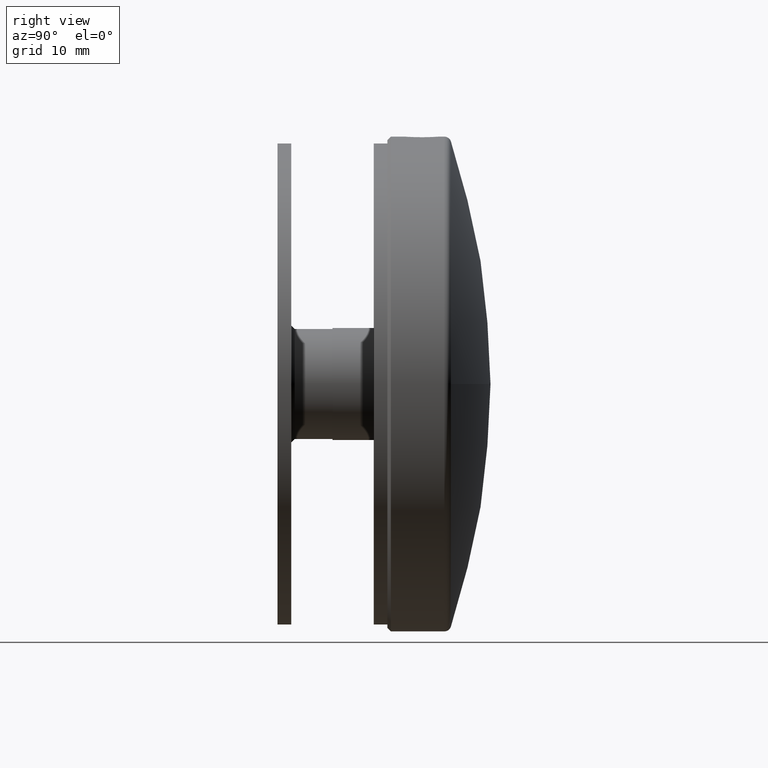
[diagram: clean part render]
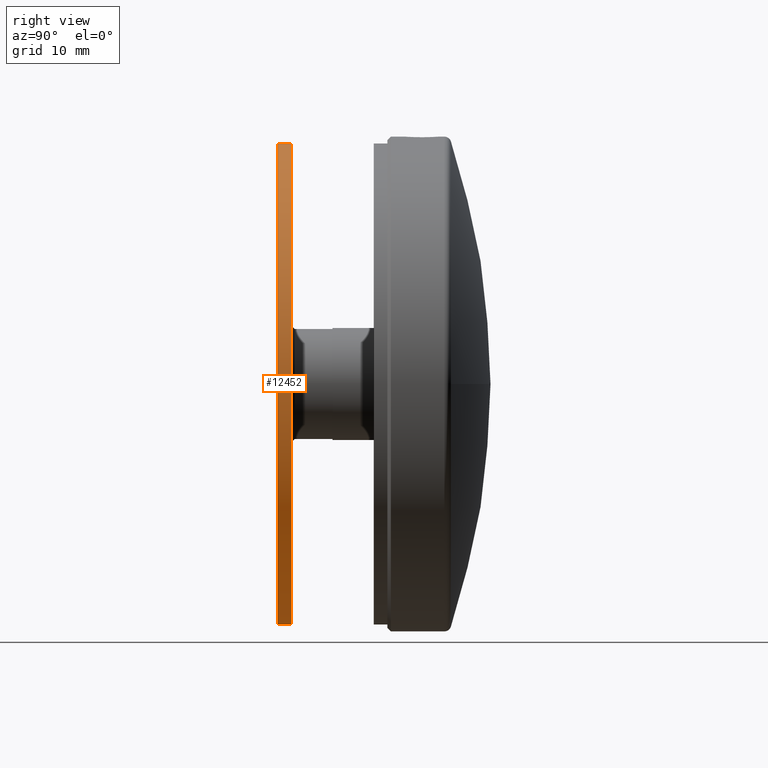
[diagram: same view with one face highlighted and labeled with its STEP entity id]
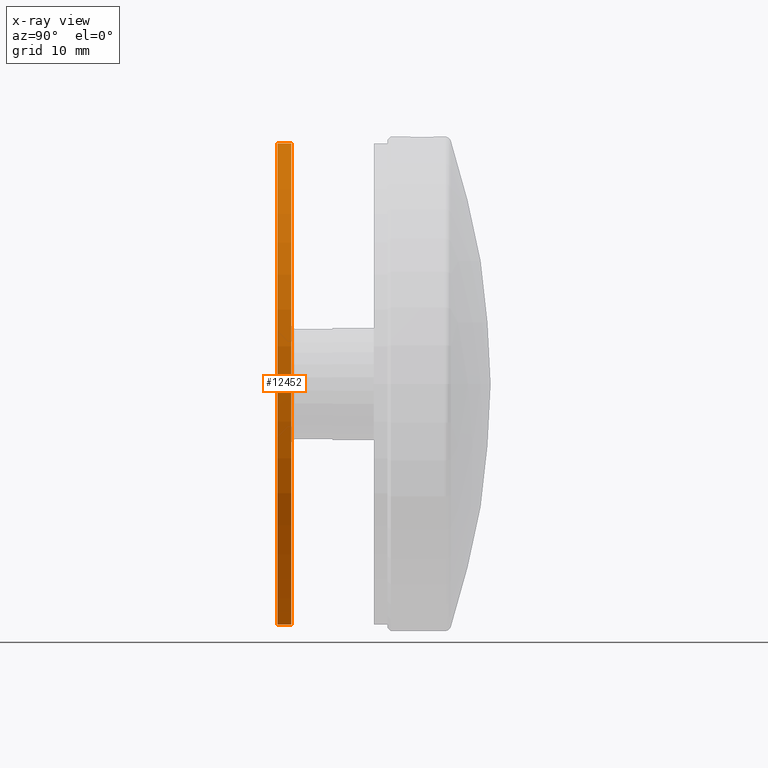
[diagram: x-ray of the same camera — body ghosted, the highlighted face saturated]
A machine part, right view. The second image highlights one B-rep face of the part: STEP entity #12452.
The next image is the same camera in x-ray: the body ghosted, the highlighted face saturated — about 0% of this face is hidden behind the body in this view.
In plain terms, the highlighted cylindrical surface (partial cylindrical patch) has radius 35 mm, axis along (-0, -1, -0).
Its self-contained STEP definition (entity closure, byte-faithful):
#76 = DIRECTION ( 'NONE',  ( -0.000000000000000000, -1.000000000000000000, -0.000000000000000000 ) ) ;
#1874 = LINE ( 'NONE', #4409, #4210 ) ;
#2002 = CARTESIAN_POINT ( 'NONE',  ( 4.286263797015736496E-15, 1.999999999999994893, 35.00000000000000000 ) ) ;
#2412 = DIRECTION ( 'NONE',  ( 0.000000000000000000, 0.000000000000000000, -1.000000000000000000 ) ) ;
#2549 = CYLINDRICAL_SURFACE ( 'NONE', #11042, 35.00000000000000000 ) ;
#3147 = AXIS2_PLACEMENT_3D ( 'NONE', #13818, #76, #5883 ) ;
#3703 = DIRECTION ( 'NONE',  ( -0.000000000000000000, -1.000000000000000000, -0.000000000000000000 ) ) ;
#4092 = CIRCLE ( 'NONE', #10466, 35.00000000000000000 ) ;
#4210 = VECTOR ( 'NONE', #5499, 1000.000000000000000 ) ;
#4392 = VERTEX_POINT ( 'NONE', #13366 ) ;
#4409 = CARTESIAN_POINT ( 'NONE',  ( 4.286263797015736496E-15, 0.000000000000000000, 35.00000000000000000 ) ) ;
#4565 = EDGE_LOOP ( 'NONE', ( #11770, #4950, #8673, #10453 ) ) ;
#4950 = ORIENTED_EDGE ( 'NONE', *, *, #9783, .T. ) ;
#5051 = CARTESIAN_POINT ( 'NONE',  ( 0.000000000000000000, -3.469446951953614189E-15, -35.00000000000000000 ) ) ;
#5322 = VERTEX_POINT ( 'NONE', #5051 ) ;
#5499 = DIRECTION ( 'NONE',  ( -0.000000000000000000, -1.000000000000000000, -0.000000000000000000 ) ) ;
#5596 = DIRECTION ( 'NONE',  ( 0.000000000000000000, 0.000000000000000000, -1.000000000000000000 ) ) ;
#5883 = DIRECTION ( 'NONE',  ( 0.000000000000000000, 0.000000000000000000, -1.000000000000000000 ) ) ;
#6079 = EDGE_CURVE ( 'NONE', #5322, #6715, #4092, .T. ) ;
#6366 = VECTOR ( 'NONE', #14382, 1000.000000000000000 ) ;
#6537 = CIRCLE ( 'NONE', #3147, 35.00000000000000000 ) ;
#6715 = VERTEX_POINT ( 'NONE', #8800 ) ;
#6833 = CARTESIAN_POINT ( 'NONE',  ( 0.000000000000000000, 0.000000000000000000, 0.000000000000000000 ) ) ;
#6947 = CARTESIAN_POINT ( 'NONE',  ( 0.000000000000000000, -3.469446951953614189E-15, 0.000000000000000000 ) ) ;
#7320 = CARTESIAN_POINT ( 'NONE',  ( 0.000000000000000000, 0.000000000000000000, -35.00000000000000000 ) ) ;
#7886 = DIRECTION ( 'NONE',  ( -0.000000000000000000, -1.000000000000000000, -0.000000000000000000 ) ) ;
#8329 = LINE ( 'NONE', #7320, #6366 ) ;
#8673 = ORIENTED_EDGE ( 'NONE', *, *, #6079, .F. ) ;
#8800 = CARTESIAN_POINT ( 'NONE',  ( 4.286263797015736496E-15, -3.469446951953614189E-15, 35.00000000000000000 ) ) ;
#9783 = EDGE_CURVE ( 'NONE', #11731, #6715, #1874, .T. ) ;
#10453 = ORIENTED_EDGE ( 'NONE', *, *, #11236, .F. ) ;
#10466 = AXIS2_PLACEMENT_3D ( 'NONE', #6947, #3703, #2412 ) ;
#11042 = AXIS2_PLACEMENT_3D ( 'NONE', #6833, #7886, #5596 ) ;
#11236 = EDGE_CURVE ( 'NONE', #4392, #5322, #8329, .T. ) ;
#11373 = EDGE_CURVE ( 'NONE', #4392, #11731, #6537, .T. ) ;
#11726 = FACE_OUTER_BOUND ( 'NONE', #4565, .T. ) ;
#11731 = VERTEX_POINT ( 'NONE', #2002 ) ;
#11770 = ORIENTED_EDGE ( 'NONE', *, *, #11373, .T. ) ;
#12452 = ADVANCED_FACE ( 'NONE', ( #11726 ), #2549, .T. ) ;
#13366 = CARTESIAN_POINT ( 'NONE',  ( 0.000000000000000000, 1.999999999999994893, -35.00000000000000000 ) ) ;
#13818 = CARTESIAN_POINT ( 'NONE',  ( 0.000000000000000000, 1.999999999999994893, 0.000000000000000000 ) ) ;
#14382 = DIRECTION ( 'NONE',  ( -0.000000000000000000, -1.000000000000000000, -0.000000000000000000 ) ) ;